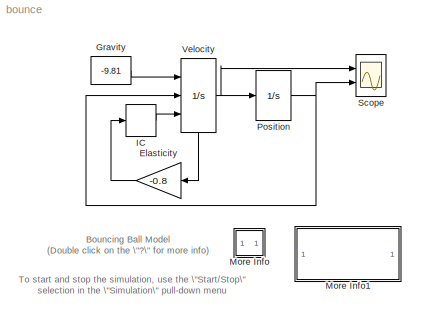
MODEL bounce
KIND model
BLOCK [Gain] Elasticity
  Gain = -0.8
BLOCK [Constant] Gravity
  Value = -9.81
BLOCK [InitialCondition] IC
  Value = 15
BLOCK [SubSystem] More Info
  MaskDisplay = disp('?')
  MaskIconFrame = on
  MaskIconOpaque = on
  MaskIconRotate = none
  MaskIconUnits = autoscale
  MinAlgLoopOccurrences = off
  Ports = []
  PropExecContextAcrossSSBoundary = on
  RTWSystemCode = Auto
  TreatAsAtomicUnit = off
BLOCK [SubSystem] More Info1
  MaskDisplay = disp('Double click\\nhere for\\nSimulink Help')
  MaskIconFrame = on
  MaskIconOpaque = on
  MaskIconRotate = none
  MaskIconUnits = autoscale
  MinAlgLoopOccurrences = off
  OpenFcn = simcad(bdroot);
  Ports = []
  PropExecContextAcrossSSBoundary = on
  RTWSystemCode = Auto
  TreatAsAtomicUnit = off
BLOCK [Integrator] Position
  InitialCondition = 10
  LimitOutput = on
  LowerSaturationLimit = 0
  Ports = [1, 1]
BLOCK [Scope] Scope
  DataFormat = Array
  NumInputPorts = 2
  Ports = [2]
  TickLabels = on
  TimeRange = 20
  YMax = 20~22.9822
  YMin = -30~0
  ZoomMode = yonly
BLOCK [Integrator] Velocity
  ExternalReset = falling
  InitialConditionSource = external
  Ports = [3, 1, 0, 0, 1]
  ShowStatePort = on
ANNOTATION (root): Bouncing Ball Model\n(Double click on the \"?\" for more info)
ANNOTATION (root): To start and stop the simulation, use the \"Start/Stop\"\nselection in the \"Simulation\" pull-down menu
ANNOTATION More Info: A rubber ball is thrown into the air with a velocity of 15\nmeters per second from a height of 10 m. The position\n of the ball is shown in the lower plot of the scope, and \nthe velocity of the ball is shown in the upper plot.
ANNOTATION More Info: This system uses a reset-integrator to change the\ndirection of the ball as it comes into contact with\nthe ground
LINE Elasticity:1 -> IC:1
LINE Gravity:1 -> Velocity:1
LINE IC:1 -> Velocity:3
NET Position:1 -> Scope:2, Velocity:2
NET Velocity:1 -> Position:1, Scope:1
LINE Velocity:state -> Elasticity:1
note: NET lines group one-source signal fan-out (src -> all destinations, sorted); 1:1 wires keep LINE
